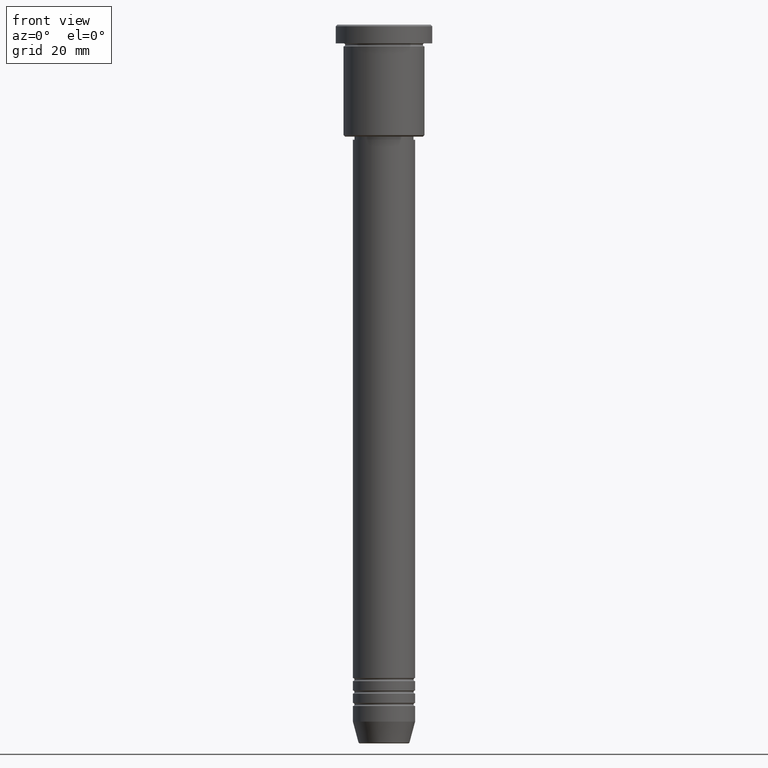
[diagram: clean part render]
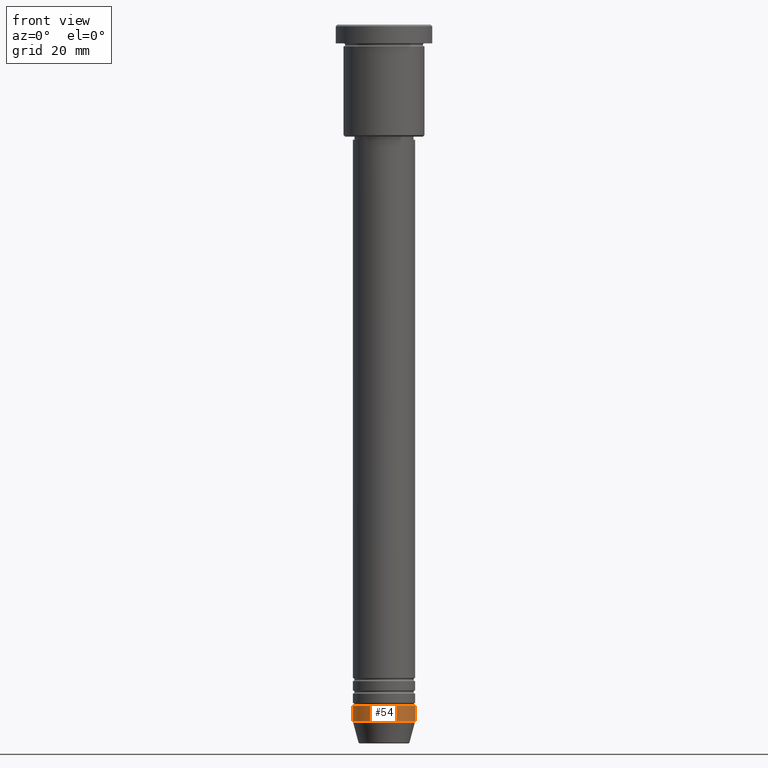
[diagram: same view with one face highlighted and labeled with its STEP entity id]
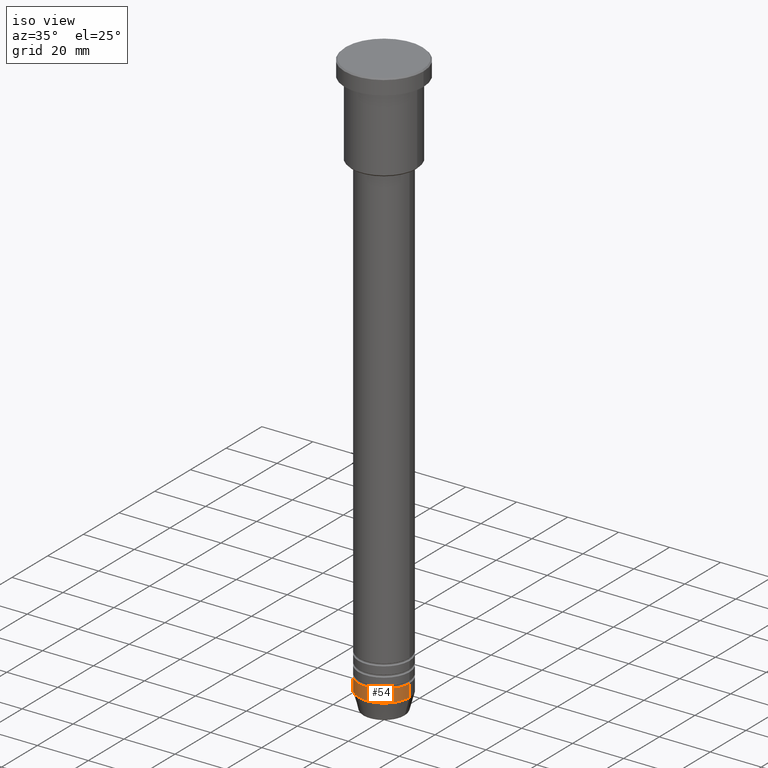
[diagram: same view with one face highlighted and labeled with its STEP entity id]
A machine part, front view. The second image highlights one B-rep face of the part: STEP entity #54.
A second angle (iso view) of the same face is appended — the face is thin or edge-on in the first view.
In plain terms, the highlighted cylindrical surface (edge-blend (fillet) strip) has radius 10 mm, axis along (-0, -0, 1).
Its self-contained STEP definition (entity closure, byte-faithful):
#12 = EDGE_CURVE ( 'NONE', #549, #338, #693, .T. ) ;
#54 = ADVANCED_FACE ( 'NONE', ( #241 ), #615, .T. ) ;
#109 = ORIENTED_EDGE ( 'NONE', *, *, #1047, .T. ) ;
#122 = AXIS2_PLACEMENT_3D ( 'NONE', #131, #967, #876 ) ;
#131 = CARTESIAN_POINT ( 'NONE',  ( 0.000000000000000000, 0.000000000000000000, 0.000000000000000000 ) ) ;
#154 = CARTESIAN_POINT ( 'NONE',  ( -10.00000000000000000, 1.224646799147353256E-15, 0.000000000000000000 ) ) ;
#241 = FACE_OUTER_BOUND ( 'NONE', #1048, .T. ) ;
#248 = ORIENTED_EDGE ( 'NONE', *, *, #552, .F. ) ;
#265 = DIRECTION ( 'NONE',  ( 1.000000000000000000, 0.000000000000000000, 0.000000000000000000 ) ) ;
#308 = CARTESIAN_POINT ( 'NONE',  ( 10.00000000000000000, 0.000000000000000000, -224.0000000000000284 ) ) ;
#338 = VERTEX_POINT ( 'NONE', #761 ) ;
#339 = CIRCLE ( 'NONE', #1116, 10.00000000000000000 ) ;
#346 = DIRECTION ( 'NONE',  ( -0.000000000000000000, -0.000000000000000000, 1.000000000000000000 ) ) ;
#348 = CARTESIAN_POINT ( 'NONE',  ( 10.00000000000000000, 0.000000000000000000, 0.000000000000000000 ) ) ;
#370 = CARTESIAN_POINT ( 'NONE',  ( 10.00000000000000000, 0.000000000000000000, -219.0000000000000568 ) ) ;
#406 = ORIENTED_EDGE ( 'NONE', *, *, #1078, .T. ) ;
#441 = DIRECTION ( 'NONE',  ( -0.000000000000000000, -0.000000000000000000, 1.000000000000000000 ) ) ;
#538 = CARTESIAN_POINT ( 'NONE',  ( 0.000000000000000000, 0.000000000000000000, -224.0000000000000284 ) ) ;
#549 = VERTEX_POINT ( 'NONE', #796 ) ;
#552 = EDGE_CURVE ( 'NONE', #338, #579, #684, .T. ) ;
#553 = VECTOR ( 'NONE', #441, 1000.000000000000000 ) ;
#571 = VECTOR ( 'NONE', #346, 1000.000000000000000 ) ;
#576 = ORIENTED_EDGE ( 'NONE', *, *, #12, .F. ) ;
#579 = VERTEX_POINT ( 'NONE', #370 ) ;
#615 = CYLINDRICAL_SURFACE ( 'NONE', #122, 10.00000000000000000 ) ;
#618 = DIRECTION ( 'NONE',  ( -0.000000000000000000, -0.000000000000000000, 1.000000000000000000 ) ) ;
#639 = LINE ( 'NONE', #348, #553 ) ;
#684 = CIRCLE ( 'NONE', #845, 10.00000000000000000 ) ;
#693 = LINE ( 'NONE', #154, #571 ) ;
#761 = CARTESIAN_POINT ( 'NONE',  ( -10.00000000000000000, 1.224646799147353256E-15, -219.0000000000000568 ) ) ;
#796 = CARTESIAN_POINT ( 'NONE',  ( -10.00000000000000000, 1.224646799147353256E-15, -224.0000000000000284 ) ) ;
#845 = AXIS2_PLACEMENT_3D ( 'NONE', #1094, #618, #975 ) ;
#876 = DIRECTION ( 'NONE',  ( 1.000000000000000000, 0.000000000000000000, 0.000000000000000000 ) ) ;
#967 = DIRECTION ( 'NONE',  ( -0.000000000000000000, -0.000000000000000000, 1.000000000000000000 ) ) ;
#975 = DIRECTION ( 'NONE',  ( 1.000000000000000000, 0.000000000000000000, 0.000000000000000000 ) ) ;
#1047 = EDGE_CURVE ( 'NONE', #549, #1115, #339, .T. ) ;
#1048 = EDGE_LOOP ( 'NONE', ( #576, #109, #406, #248 ) ) ;
#1078 = EDGE_CURVE ( 'NONE', #1115, #579, #639, .T. ) ;
#1086 = DIRECTION ( 'NONE',  ( -0.000000000000000000, -0.000000000000000000, 1.000000000000000000 ) ) ;
#1094 = CARTESIAN_POINT ( 'NONE',  ( 0.000000000000000000, 0.000000000000000000, -219.0000000000000568 ) ) ;
#1115 = VERTEX_POINT ( 'NONE', #308 ) ;
#1116 = AXIS2_PLACEMENT_3D ( 'NONE', #538, #1086, #265 ) ;